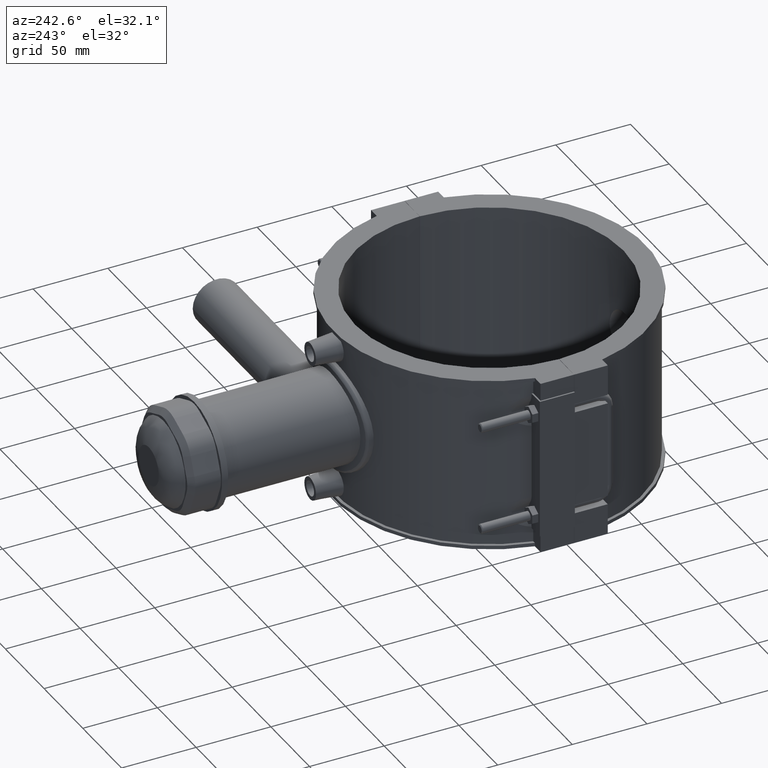
[diagram: clean part render]
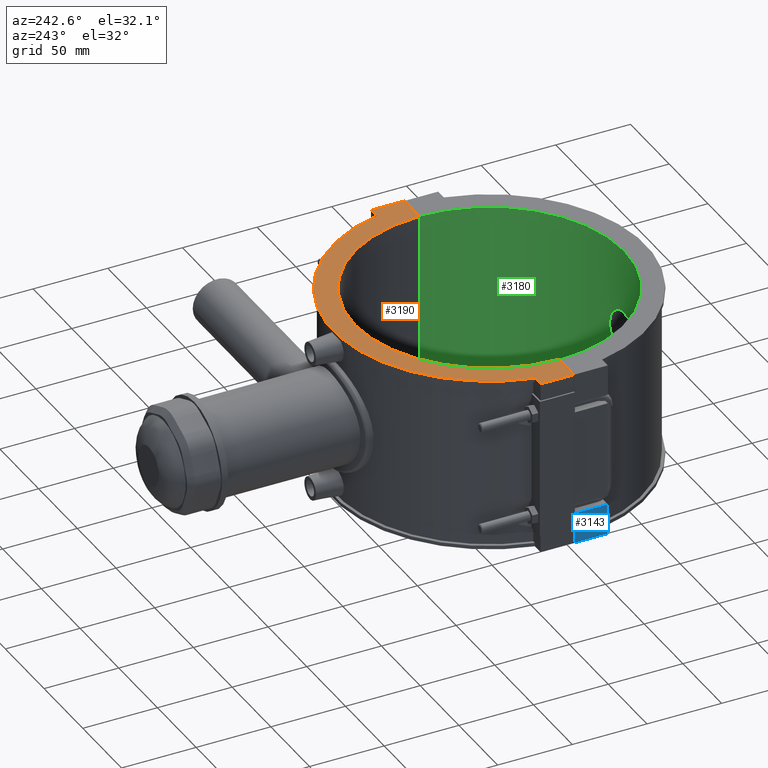
[diagram: same view with three faces highlighted in distinct colors, each labeled with its STEP entity id]
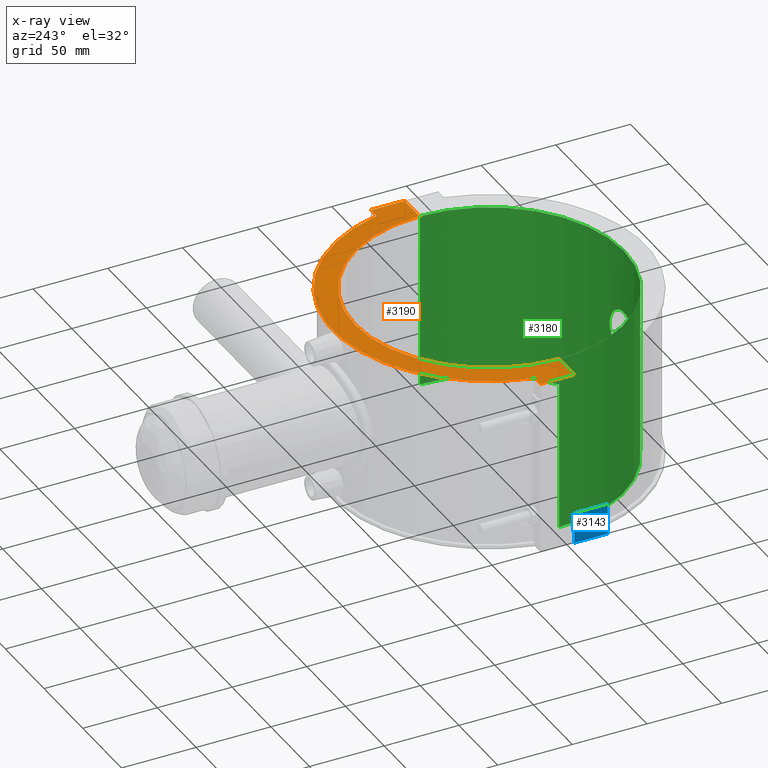
[diagram: x-ray of the same camera — body ghosted, the three highlighted faces saturated]
A machine part, auxiliary view with three faces highlighted in distinct colors.
The next image is the same camera in x-ray (body ghosted, the three faces saturated) — at least one of them is partly hidden behind the body in this view.
Their STEP definitions:

[orange] entity #3190 — the highlighted planar face has unit normal (0, 0, 1).
#127=LINE('',#5270,#406);
#168=LINE('',#5564,#447);
#211=LINE('',#5812,#490);
#213=LINE('',#5815,#492);
#268=LINE('',#6165,#547);
#313=LINE('',#6469,#592);
#406=VECTOR('',#3767,7.29534695523888);
#447=VECTOR('',#3842,22.45);
#490=VECTOR('',#3921,22.45);
#492=VECTOR('',#3925,7.29534695523888);
#547=VECTOR('',#4134,19.50001388889);
#592=VECTOR('',#4291,19.50001388889);
#707=PLANE('',#3471);
#748=CIRCLE('',#3286,104.652);
#810=CIRCLE('',#3468,90.);
#1043=FACE_OUTER_BOUND('',#1275,.T.);
#1275=EDGE_LOOP('',(#2955,#2956,#2957,#2958,#2959,#2960,#2961,#2962));
#1428=VERTEX_POINT('',#5239);
#1429=VERTEX_POINT('',#5240);
#1439=VERTEX_POINT('',#5268);
#1489=VERTEX_POINT('',#5562);
#1525=VERTEX_POINT('',#5809);
#1526=VERTEX_POINT('',#5811);
#1582=VERTEX_POINT('',#6163);
#1623=VERTEX_POINT('',#6468);
#1764=EDGE_CURVE('',#1428,#1429,#748,.T.);
#1779=EDGE_CURVE('',#1429,#1439,#127,.T.);
#1841=EDGE_CURVE('',#1439,#1489,#168,.T.);
#1893=EDGE_CURVE('',#1526,#1525,#211,.T.);
#1895=EDGE_CURVE('',#1525,#1428,#213,.T.);
#1985=EDGE_CURVE('',#1489,#1582,#268,.T.);
#2057=EDGE_CURVE('',#1623,#1526,#313,.T.);
#2063=EDGE_CURVE('',#1582,#1623,#810,.T.);
#2955=ORIENTED_EDGE('',*,*,#2057,.T.);
#2956=ORIENTED_EDGE('',*,*,#1893,.T.);
#2957=ORIENTED_EDGE('',*,*,#1895,.T.);
#2958=ORIENTED_EDGE('',*,*,#1764,.T.);
#2959=ORIENTED_EDGE('',*,*,#1779,.T.);
#2960=ORIENTED_EDGE('',*,*,#1841,.T.);
#2961=ORIENTED_EDGE('',*,*,#1985,.T.);
#2962=ORIENTED_EDGE('',*,*,#2063,.T.);
#3190=ADVANCED_FACE('',(#1043),#707,.T.);
#3286=AXIS2_PLACEMENT_3D('',#5241,#3738,#3739);
#3468=AXIS2_PLACEMENT_3D('',#6480,#4303,#4304);
#3471=AXIS2_PLACEMENT_3D('',#6483,#4309,#4310);
#3738=DIRECTION('center_axis',(0.,0.,1.));
#3739=DIRECTION('ref_axis',(0.976614427290077,0.21499828001376,0.));
#3767=DIRECTION('',(-1.,0.,0.));
#3842=DIRECTION('',(0.,-1.,0.));
#3921=DIRECTION('',(0.,1.,0.));
#3925=DIRECTION('',(-1.,0.,0.));
#4134=DIRECTION('',(1.,-1.58422235249023E-19,0.));
#4291=DIRECTION('',(1.,-1.58422235249023E-19,0.));
#4303=DIRECTION('center_axis',(0.,0.,-1.));
#4304=DIRECTION('ref_axis',(-1.,0.,0.));
#4309=DIRECTION('center_axis',(0.,0.,1.));
#4310=DIRECTION('ref_axis',(1.,0.,0.));
#5239=CARTESIAN_POINT('',(102.204653044761,22.5,59.));
#5240=CARTESIAN_POINT('',(-102.204653044761,22.5,59.));
#5241=CARTESIAN_POINT('Origin',(0.,0.,59.));
#5268=CARTESIAN_POINT('',(-109.5,22.5,59.));
#5270=CARTESIAN_POINT('',(-100.102497471342,22.5,59.));
#5562=CARTESIAN_POINT('',(-109.5,0.0499999999999989,59.));
#5564=CARTESIAN_POINT('',(-109.5,22.5,59.));
#5809=CARTESIAN_POINT('',(109.5,22.5,59.));
#5811=CARTESIAN_POINT('',(109.5,0.0499999999999989,59.));
#5812=CARTESIAN_POINT('',(109.5,-22.5,59.));
#5815=CARTESIAN_POINT('',(109.5,22.5,59.));
#6163=CARTESIAN_POINT('',(-89.99998611111,0.0499999999999989,59.));
#6165=CARTESIAN_POINT('',(1.79648330050455,0.0499999999999989,59.));
#6468=CARTESIAN_POINT('',(89.99998611111,0.0499999999999989,59.));
#6469=CARTESIAN_POINT('',(1.79648330050455,0.0499999999999989,59.));
#6480=CARTESIAN_POINT('Origin',(0.,0.,59.));
#6483=CARTESIAN_POINT('Origin',(-105.907033398991,1.00372537223288E-16,
59.));

[blue] entity #3143 — the highlighted planar face has unit normal (-1, 0, 0).
#116=LINE('',#5236,#395);
#258=LINE('',#6144,#537);
#261=LINE('',#6152,#540);
#262=LINE('',#6153,#541);
#395=VECTOR('',#3734,20.6);
#537=VECTOR('',#4112,22.45);
#540=VECTOR('',#4121,20.6);
#541=VECTOR('',#4122,22.45);
#675=PLANE('',#3405);
#996=FACE_OUTER_BOUND('',#1214,.T.);
#1214=EDGE_LOOP('',(#2699,#2700,#2701,#2702));
#1426=VERTEX_POINT('',#5233);
#1427=VERTEX_POINT('',#5235);
#1577=VERTEX_POINT('',#6142);
#1579=VERTEX_POINT('',#6151);
#1762=EDGE_CURVE('',#1427,#1426,#116,.T.);
#1974=EDGE_CURVE('',#1426,#1577,#258,.T.);
#1978=EDGE_CURVE('',#1577,#1579,#261,.T.);
#1979=EDGE_CURVE('',#1427,#1579,#262,.T.);
#2699=ORIENTED_EDGE('',*,*,#1974,.T.);
#2700=ORIENTED_EDGE('',*,*,#1978,.T.);
#2701=ORIENTED_EDGE('',*,*,#1979,.F.);
#2702=ORIENTED_EDGE('',*,*,#1762,.T.);
#3143=ADVANCED_FACE('',(#996),#675,.T.);
#3405=AXIS2_PLACEMENT_3D('',#6150,#4119,#4120);
#3734=DIRECTION('',(0.,0.,1.));
#4112=DIRECTION('',(0.,1.,0.));
#4119=DIRECTION('center_axis',(-1.,0.,0.));
#4120=DIRECTION('ref_axis',(0.,-1.,0.));
#4121=DIRECTION('',(0.,0.,-1.));
#4122=DIRECTION('',(0.,1.,0.));
#5233=CARTESIAN_POINT('',(-109.5,-22.5,-38.4));
#5235=CARTESIAN_POINT('',(-109.5,-22.5,-59.));
#5236=CARTESIAN_POINT('',(-109.5,-22.5,0.));
#6142=CARTESIAN_POINT('',(-109.5,-0.0499999999999989,-38.4));
#6144=CARTESIAN_POINT('',(-109.5,-4.44089209850063E-15,-38.4));
#6150=CARTESIAN_POINT('Origin',(-109.5,22.5,0.));
#6151=CARTESIAN_POINT('',(-109.5,-0.0499999999999989,-59.));
#6152=CARTESIAN_POINT('',(-109.5,-0.0499999999999989,-29.5));
#6153=CARTESIAN_POINT('',(-109.5,22.5,-59.));

[green] entity #3180 — the highlighted cylindrical surface (partial cylindrical patch) has radius 90 mm, axis along (0, 0, 1).
#304=LINE('',#6445,#583);
#310=LINE('',#6459,#589);
#583=VECTOR('',#4260,118.);
#589=VECTOR('',#4276,118.);
#808=CIRCLE('',#3458,90.);
#809=CIRCLE('',#3459,90.);
#859=FACE_BOUND('',#1262,.T.);
#1033=FACE_OUTER_BOUND('',#1261,.T.);
#1261=EDGE_LOOP('',(#2881,#2882,#2883,#2884));
#1262=EDGE_LOOP('',(#2885));
#1291=B_SPLINE_CURVE_WITH_KNOTS('',3,(#5021,#5022,#5023,#5024,#5025,#5026,
#5027,#5028,#5029,#5030,#5031,#5032,#5033,#5034,#5035,#5036,#5037,#5038,
#5039,#5040,#5041,#5042,#5043,#5044,#5045,#5046,#5047,#5048,#5049,#5050,
#5051,#5052,#5053,#5054,#5055,#5056,#5057,#5058,#5059,#5060,#5061,#5062,
#5063,#5064,#5065,#5066,#5067,#5068,#5069,#5070,#5071,#5072,#5073,#5074,
#5075,#5076,#5077,#5078,#5079,#5080,#5081,#5082,#5083,#5084,#5085,#5086),
 .UNSPECIFIED.,.T.,.F.,(4,2,2,2,2,2,2,2,2,2,2,2,2,2,2,2,2,2,2,2,2,2,2,2,
2,2,2,2,2,2,2,2,4),(0.,0.295977203697339,0.591954407394679,0.887931611092018,
1.18390881478936,1.47987655613321,1.77584429747706,2.07181203882091,2.36777978016476,
2.66374752150861,2.95971526285246,3.25568300419631,3.55165074554016,3.8476279492375,
4.14360515293484,4.43958235663218,4.73555956032952,5.03153676402686,5.3275139677242,
5.62349117142153,5.91946837511887,6.21543611646272,6.51140385780657,6.80737159915042,
7.10333934049427,7.39930708183813,7.69527482318198,7.99124256452583,8.28721030586968,
8.58318750956701,8.87916471326436,9.1751419169617,9.47111912065903),
 .UNSPECIFIED.);
#1399=VERTEX_POINT('',#5020);
#1618=VERTEX_POINT('',#6442);
#1619=VERTEX_POINT('',#6444);
#1621=VERTEX_POINT('',#6456);
#1622=VERTEX_POINT('',#6458);
#1730=EDGE_CURVE('',#1399,#1399,#1291,.T.);
#2046=EDGE_CURVE('',#1619,#1618,#304,.T.);
#2052=EDGE_CURVE('',#1621,#1618,#808,.T.);
#2053=EDGE_CURVE('',#1621,#1622,#310,.T.);
#2054=EDGE_CURVE('',#1619,#1622,#809,.T.);
#2881=ORIENTED_EDGE('',*,*,#2046,.T.);
#2882=ORIENTED_EDGE('',*,*,#2052,.F.);
#2883=ORIENTED_EDGE('',*,*,#2053,.T.);
#2884=ORIENTED_EDGE('',*,*,#2054,.F.);
#2885=ORIENTED_EDGE('',*,*,#1730,.T.);
#3008=CYLINDRICAL_SURFACE('',#3457,90.);
#3180=ADVANCED_FACE('',(#1033,#859),#3008,.F.);
#3457=AXIS2_PLACEMENT_3D('',#6455,#4272,#4273);
#3458=AXIS2_PLACEMENT_3D('',#6457,#4274,#4275);
#3459=AXIS2_PLACEMENT_3D('',#6460,#4277,#4278);
#4260=DIRECTION('',(0.,0.,-1.));
#4272=DIRECTION('center_axis',(0.,0.,1.));
#4273=DIRECTION('ref_axis',(-1.,0.,0.));
#4274=DIRECTION('center_axis',(0.,0.,1.));
#4275=DIRECTION('ref_axis',(-1.,0.,0.));
#4276=DIRECTION('',(0.,0.,1.));
#4277=DIRECTION('center_axis',(0.,0.,-1.));
#4278=DIRECTION('ref_axis',(-1.,0.,0.));
#5020=CARTESIAN_POINT('',(15.68,-88.6235724849772,0.));
#5021=CARTESIAN_POINT('Ctrl Pts',(15.68,-88.6235724849772,0.));
#5022=CARTESIAN_POINT('Ctrl Pts',(15.68,-88.6235724849772,0.986590678991132));
#5023=CARTESIAN_POINT('Ctrl Pts',(15.5853843076952,-88.6404904668023,2.00622011480189));
#5024=CARTESIAN_POINT('Ctrl Pts',(15.1875750153918,-88.7095165095146,4.03319827603943));
#5025=CARTESIAN_POINT('Ctrl Pts',(14.8844737729482,-88.7615738487349,5.04056685315292));
#5026=CARTESIAN_POINT('Ctrl Pts',(14.0837550864809,-88.8921390782618,6.97156521187791));
#5027=CARTESIAN_POINT('Ctrl Pts',(13.5855007005201,-88.9706256653422,7.89677141113685));
#5028=CARTESIAN_POINT('Ctrl Pts',(12.4348554077353,-89.1387257679826,9.6072472131556));
#5029=CARTESIAN_POINT('Ctrl Pts',(11.7823870213668,-89.2281668421019,10.3924816366433));
#5030=CARTESIAN_POINT('Ctrl Pts',(10.3925038541924,-89.400706005088,11.7823648038178));
#5031=CARTESIAN_POINT('Ctrl Pts',(9.60727971514996,-89.4898798575154,12.4348307546676));
#5032=CARTESIAN_POINT('Ctrl Pts',(7.89679730933778,-89.657007605038,13.5854860674005));
#5033=CARTESIAN_POINT('Ctrl Pts',(6.97157422799911,-89.7347956106372,14.0837518206665));
#5034=CARTESIAN_POINT('Ctrl Pts',(5.04054309521847,-89.8639489212032,14.8844831516831));
#5035=CARTESIAN_POINT('Ctrl Pts',(4.03315908421279,-89.9153043126498,15.1875855263665));
#5036=CARTESIAN_POINT('Ctrl Pts',(2.00617686960529,-89.9833516613094,15.5853899754747));
#5037=CARTESIAN_POINT('Ctrl Pts',(0.986559137812836,-90.,15.68));
#5038=CARTESIAN_POINT('Ctrl Pts',(-0.986559137812832,-90.,15.68));
#5039=CARTESIAN_POINT('Ctrl Pts',(-2.00617686960528,-89.9833516613094,15.5853899754747));
#5040=CARTESIAN_POINT('Ctrl Pts',(-4.03315908421278,-89.9153043126498,15.1875855263665));
#5041=CARTESIAN_POINT('Ctrl Pts',(-5.04054309521846,-89.8639489212032,14.8844831516831));
#5042=CARTESIAN_POINT('Ctrl Pts',(-6.9715742279991,-89.7347956106372,14.0837518206665));
#5043=CARTESIAN_POINT('Ctrl Pts',(-7.89679730933778,-89.657007605038,13.5854860674005));
#5044=CARTESIAN_POINT('Ctrl Pts',(-9.60727971514996,-89.4898798575154,12.4348307546676));
#5045=CARTESIAN_POINT('Ctrl Pts',(-10.3925038541924,-89.400706005088,11.7823648038178));
#5046=CARTESIAN_POINT('Ctrl Pts',(-11.7823870213668,-89.2281668421019,10.3924816366433));
#5047=CARTESIAN_POINT('Ctrl Pts',(-12.4348554077353,-89.1387257679826,9.6072472131556));
#5048=CARTESIAN_POINT('Ctrl Pts',(-13.5855007005201,-88.9706256653422,7.89677141113685));
#5049=CARTESIAN_POINT('Ctrl Pts',(-14.0837550864809,-88.8921390782618,6.97156521187791));
#5050=CARTESIAN_POINT('Ctrl Pts',(-14.8844737729482,-88.7615738487349,5.04056685315293));
#5051=CARTESIAN_POINT('Ctrl Pts',(-15.1875750153918,-88.7095165095146,4.03319827603943));
#5052=CARTESIAN_POINT('Ctrl Pts',(-15.5853843076952,-88.6404904668023,2.00622011480189));
#5053=CARTESIAN_POINT('Ctrl Pts',(-15.68,-88.6235724849772,0.986590678991132));
#5054=CARTESIAN_POINT('Ctrl Pts',(-15.68,-88.6235724849772,-0.986590678991132));
#5055=CARTESIAN_POINT('Ctrl Pts',(-15.5853843076952,-88.6404904668023,-2.00622011480189));
#5056=CARTESIAN_POINT('Ctrl Pts',(-15.1875750153918,-88.7095165095146,-4.03319827603943));
#5057=CARTESIAN_POINT('Ctrl Pts',(-14.8844737729482,-88.7615738487349,-5.04056685315293));
#5058=CARTESIAN_POINT('Ctrl Pts',(-14.0837550864809,-88.8921390782618,-6.97156521187791));
#5059=CARTESIAN_POINT('Ctrl Pts',(-13.5855007005201,-88.9706256653422,-7.89677141113684));
#5060=CARTESIAN_POINT('Ctrl Pts',(-12.4348554077353,-89.1387257679826,-9.6072472131556));
#5061=CARTESIAN_POINT('Ctrl Pts',(-11.7823870213668,-89.2281668421019,-10.3924816366433));
#5062=CARTESIAN_POINT('Ctrl Pts',(-10.3925038541924,-89.400706005088,-11.7823648038178));
#5063=CARTESIAN_POINT('Ctrl Pts',(-9.60727971514996,-89.4898798575154,-12.4348307546676));
#5064=CARTESIAN_POINT('Ctrl Pts',(-7.89679730933778,-89.657007605038,-13.5854860674005));
#5065=CARTESIAN_POINT('Ctrl Pts',(-6.9715742279991,-89.7347956106372,-14.0837518206665));
#5066=CARTESIAN_POINT('Ctrl Pts',(-5.04054309521847,-89.8639489212032,-14.8844831516831));
#5067=CARTESIAN_POINT('Ctrl Pts',(-4.03315908421279,-89.9153043126498,-15.1875855263665));
#5068=CARTESIAN_POINT('Ctrl Pts',(-2.00617686960529,-89.9833516613094,-15.5853899754747));
#5069=CARTESIAN_POINT('Ctrl Pts',(-0.986559137812837,-90.,-15.68));
#5070=CARTESIAN_POINT('Ctrl Pts',(0.986559137812831,-90.,-15.68));
#5071=CARTESIAN_POINT('Ctrl Pts',(2.00617686960528,-89.9833516613094,-15.5853899754747));
#5072=CARTESIAN_POINT('Ctrl Pts',(4.03315908421278,-89.9153043126498,-15.1875855263665));
#5073=CARTESIAN_POINT('Ctrl Pts',(5.04054309521846,-89.8639489212032,-14.8844831516831));
#5074=CARTESIAN_POINT('Ctrl Pts',(6.9715742279991,-89.7347956106372,-14.0837518206665));
#5075=CARTESIAN_POINT('Ctrl Pts',(7.89679730933778,-89.657007605038,-13.5854860674005));
#5076=CARTESIAN_POINT('Ctrl Pts',(9.60727971514996,-89.4898798575154,-12.4348307546676));
#5077=CARTESIAN_POINT('Ctrl Pts',(10.3925038541924,-89.400706005088,-11.7823648038178));
#5078=CARTESIAN_POINT('Ctrl Pts',(11.7823870213668,-89.2281668421019,-10.3924816366433));
#5079=CARTESIAN_POINT('Ctrl Pts',(12.4348554077353,-89.1387257679826,-9.60724721315561));
#5080=CARTESIAN_POINT('Ctrl Pts',(13.5855007005201,-88.9706256653422,-7.89677141113686));
#5081=CARTESIAN_POINT('Ctrl Pts',(14.0837550864809,-88.8921390782619,-6.97156521187791));
#5082=CARTESIAN_POINT('Ctrl Pts',(14.8844737729482,-88.7615738487349,-5.04056685315292));
#5083=CARTESIAN_POINT('Ctrl Pts',(15.1875750153918,-88.7095165095146,-4.03319827603942));
#5084=CARTESIAN_POINT('Ctrl Pts',(15.5853843076952,-88.6404904668023,-2.00622011480188));
#5085=CARTESIAN_POINT('Ctrl Pts',(15.68,-88.6235724849772,-0.98659067899113));
#5086=CARTESIAN_POINT('Ctrl Pts',(15.68,-88.6235724849772,-8.32667268468867E-16));
#6442=CARTESIAN_POINT('',(89.99998611111,-0.0499999999999989,-59.));
#6444=CARTESIAN_POINT('',(89.99998611111,-0.0499999999999989,59.));
#6445=CARTESIAN_POINT('',(89.99998611111,-0.0499999999999989,0.));
#6455=CARTESIAN_POINT('Origin',(0.,0.,0.));
#6456=CARTESIAN_POINT('',(-89.99998611111,-0.0499999999999989,-59.));
#6457=CARTESIAN_POINT('Origin',(0.,0.,-59.));
#6458=CARTESIAN_POINT('',(-89.99998611111,-0.0499999999999989,59.));
#6459=CARTESIAN_POINT('',(-89.99998611111,-0.0499999999999989,0.));
#6460=CARTESIAN_POINT('Origin',(0.,0.,59.));